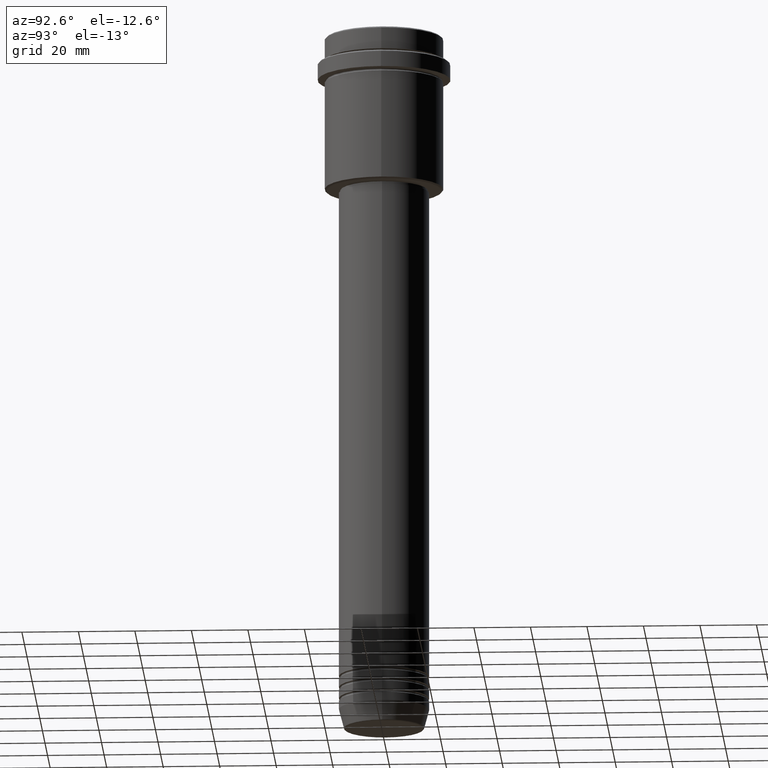
[diagram: clean part render]
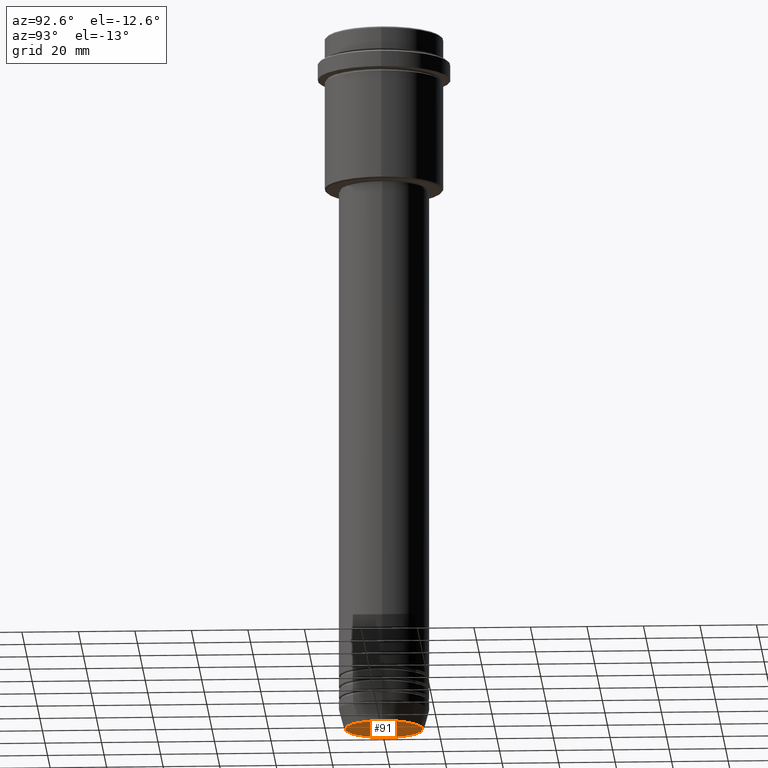
[diagram: same view with one face highlighted and labeled with its STEP entity id]
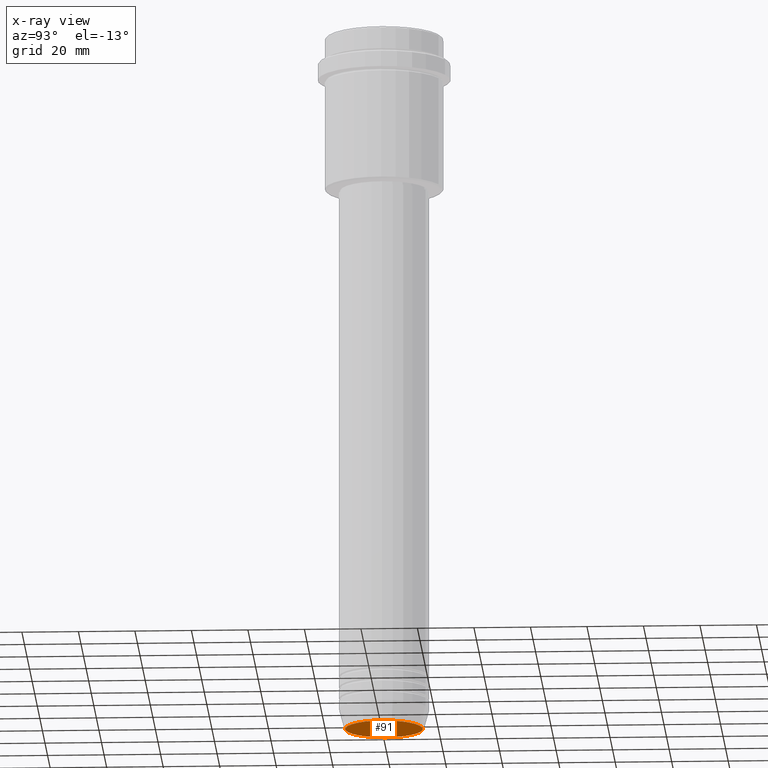
[diagram: x-ray of the same camera — body ghosted, the highlighted face saturated]
A machine part, auxiliary view. The second image highlights one B-rep face of the part: STEP entity #91.
The next image is the same camera in x-ray: the body ghosted, the highlighted face saturated — about 0% of this face is hidden behind the body in this view.
In plain terms, the highlighted planar face has unit normal (0, -0, 1).
Its self-contained STEP definition (entity closure, byte-faithful):
#8 = ORIENTED_EDGE ( 'NONE', *, *, #1143, .T. ) ;
#33 = CARTESIAN_POINT ( 'NONE',  ( 0.000000000000000000, 0.000000000000000000, -250.0000000000000000 ) ) ;
#51 = DIRECTION ( 'NONE',  ( 0.000000000000000000, 0.000000000000000000, -1.000000000000000000 ) ) ;
#91 = ADVANCED_FACE ( 'NONE', ( #352 ), #673, .F. ) ;
#111 = EDGE_LOOP ( 'NONE', ( #816, #8 ) ) ;
#124 = CARTESIAN_POINT ( 'NONE',  ( 13.74069215899265828, 0.000000000000000000, -250.0000000000000000 ) ) ;
#186 = DIRECTION ( 'NONE',  ( 0.000000000000000000, -0.000000000000000000, 1.000000000000000000 ) ) ;
#239 = VERTEX_POINT ( 'NONE', #1256 ) ;
#260 = AXIS2_PLACEMENT_3D ( 'NONE', #33, #186, #282 ) ;
#282 = DIRECTION ( 'NONE',  ( 1.000000000000000000, 0.000000000000000000, 0.000000000000000000 ) ) ;
#352 = FACE_OUTER_BOUND ( 'NONE', #111, .T. ) ;
#361 = AXIS2_PLACEMENT_3D ( 'NONE', #483, #51, #938 ) ;
#483 = CARTESIAN_POINT ( 'NONE',  ( 0.000000000000000000, 0.000000000000000000, -250.0000000000000000 ) ) ;
#575 = DIRECTION ( 'NONE',  ( 0.000000000000000000, 0.000000000000000000, -1.000000000000000000 ) ) ;
#673 = PLANE ( 'NONE',  #260 ) ;
#677 = CARTESIAN_POINT ( 'NONE',  ( 0.000000000000000000, 0.000000000000000000, -250.0000000000000000 ) ) ;
#714 = CIRCLE ( 'NONE', #361, 13.74069215899265828 ) ;
#816 = ORIENTED_EDGE ( 'NONE', *, *, #1397, .T. ) ;
#938 = DIRECTION ( 'NONE',  ( 1.000000000000000000, 0.000000000000000000, 0.000000000000000000 ) ) ;
#1143 = EDGE_CURVE ( 'NONE', #239, #1361, #714, .T. ) ;
#1147 = AXIS2_PLACEMENT_3D ( 'NONE', #677, #575, #1315 ) ;
#1212 = CIRCLE ( 'NONE', #1147, 13.74069215899265828 ) ;
#1256 = CARTESIAN_POINT ( 'NONE',  ( -13.74069215899265828, 1.712322416342415986E-15, -250.0000000000000000 ) ) ;
#1315 = DIRECTION ( 'NONE',  ( 1.000000000000000000, 0.000000000000000000, 0.000000000000000000 ) ) ;
#1361 = VERTEX_POINT ( 'NONE', #124 ) ;
#1397 = EDGE_CURVE ( 'NONE', #1361, #239, #1212, .T. ) ;